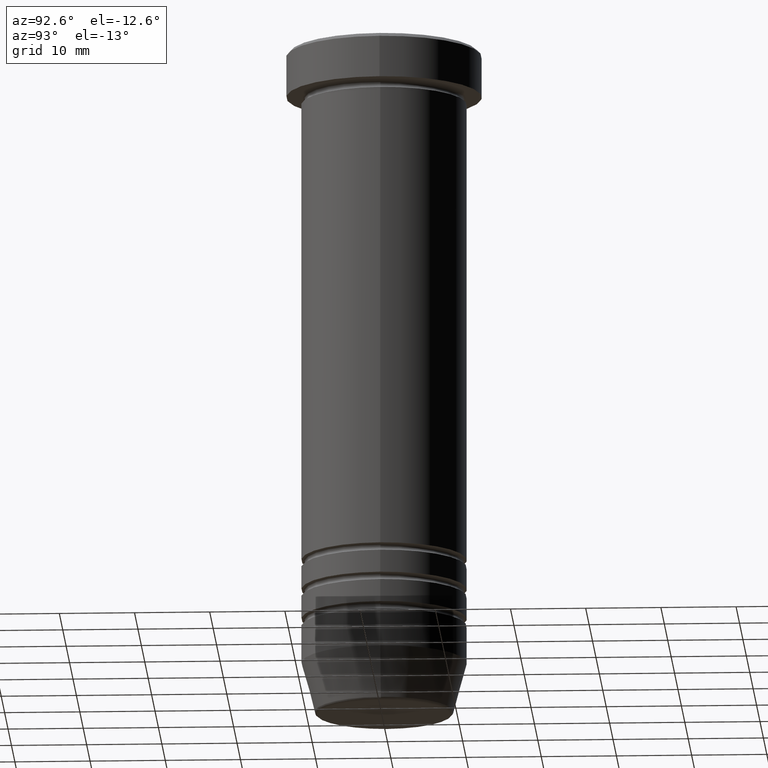
[diagram: clean part render]
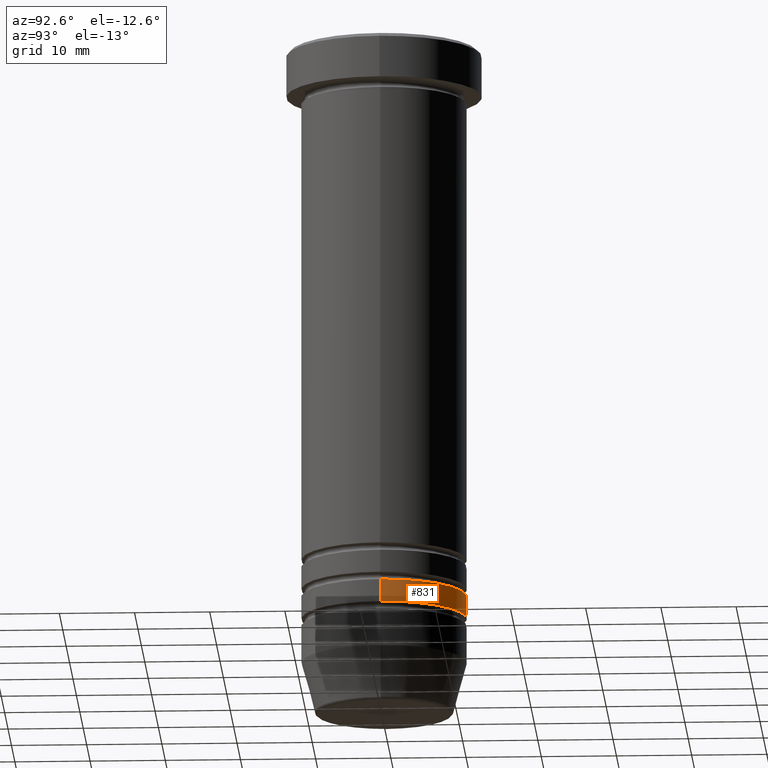
[diagram: same view with one face highlighted and labeled with its STEP entity id]
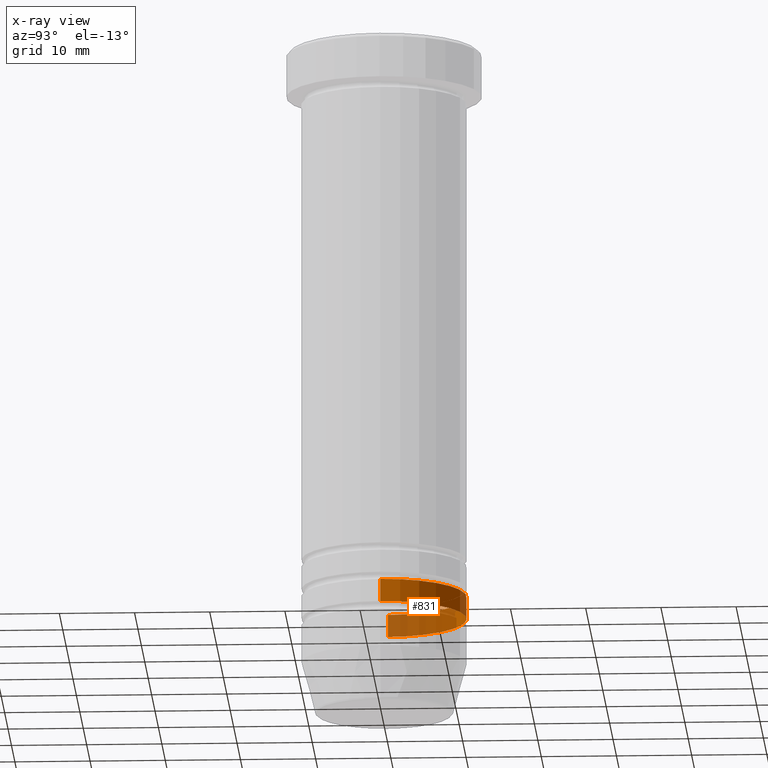
[diagram: x-ray of the same camera — body ghosted, the highlighted face saturated]
A machine part, auxiliary view. The second image highlights one B-rep face of the part: STEP entity #831.
The next image is the same camera in x-ray: the body ghosted, the highlighted face saturated — about 42% of this face is hidden behind the body in this view.
In plain terms, the highlighted cylindrical surface (partial cylindrical patch) has radius 11 mm, axis along (-0, -0, 1).
Its self-contained STEP definition (entity closure, byte-faithful):
#43 = CARTESIAN_POINT ( 'NONE',  ( 10.99999999999999645, 0.000000000000000000, 0.000000000000000000 ) ) ;
#45 = CARTESIAN_POINT ( 'NONE',  ( 0.000000000000000000, 0.000000000000000000, -76.99999999999998579 ) ) ;
#141 = EDGE_CURVE ( 'NONE', #911, #784, #813, .T. ) ;
#182 = CARTESIAN_POINT ( 'NONE',  ( 0.000000000000000000, 0.000000000000000000, -73.99999999999998579 ) ) ;
#192 = DIRECTION ( 'NONE',  ( -0.000000000000000000, -0.000000000000000000, 1.000000000000000000 ) ) ;
#219 = AXIS2_PLACEMENT_3D ( 'NONE', #45, #962, #631 ) ;
#271 = CARTESIAN_POINT ( 'NONE',  ( 0.000000000000000000, 0.000000000000000000, 0.000000000000000000 ) ) ;
#284 = VERTEX_POINT ( 'NONE', #992 ) ;
#338 = EDGE_LOOP ( 'NONE', ( #421, #351, #725, #643 ) ) ;
#351 = ORIENTED_EDGE ( 'NONE', *, *, #746, .T. ) ;
#421 = ORIENTED_EDGE ( 'NONE', *, *, #529, .T. ) ;
#439 = CARTESIAN_POINT ( 'NONE',  ( 10.99999999999999289, 0.000000000000000000, -76.99999999999998579 ) ) ;
#449 = FACE_OUTER_BOUND ( 'NONE', #338, .T. ) ;
#472 = CIRCLE ( 'NONE', #589, 11.00000000000000000 ) ;
#494 = DIRECTION ( 'NONE',  ( -0.000000000000000000, -0.000000000000000000, 1.000000000000000000 ) ) ;
#529 = EDGE_CURVE ( 'NONE', #911, #748, #688, .T. ) ;
#589 = AXIS2_PLACEMENT_3D ( 'NONE', #182, #192, #928 ) ;
#595 = DIRECTION ( 'NONE',  ( -0.000000000000000000, -0.000000000000000000, 1.000000000000000000 ) ) ;
#631 = DIRECTION ( 'NONE',  ( 1.000000000000000000, 0.000000000000000000, 0.000000000000000000 ) ) ;
#643 = ORIENTED_EDGE ( 'NONE', *, *, #141, .F. ) ;
#656 = LINE ( 'NONE', #987, #983 ) ;
#661 = CARTESIAN_POINT ( 'NONE',  ( -10.99999999999999289, 1.347111479062087813E-15, -76.99999999999998579 ) ) ;
#667 = AXIS2_PLACEMENT_3D ( 'NONE', #271, #595, #696 ) ;
#688 = CIRCLE ( 'NONE', #219, 10.99999999999999289 ) ;
#696 = DIRECTION ( 'NONE',  ( 1.000000000000000000, 0.000000000000000000, 0.000000000000000000 ) ) ;
#725 = ORIENTED_EDGE ( 'NONE', *, *, #874, .F. ) ;
#746 = EDGE_CURVE ( 'NONE', #748, #284, #656, .T. ) ;
#748 = VERTEX_POINT ( 'NONE', #661 ) ;
#784 = VERTEX_POINT ( 'NONE', #821 ) ;
#813 = LINE ( 'NONE', #43, #970 ) ;
#821 = CARTESIAN_POINT ( 'NONE',  ( 11.00000000000000000, 0.000000000000000000, -73.99999999999998579 ) ) ;
#831 = ADVANCED_FACE ( 'NONE', ( #449 ), #1011, .T. ) ;
#874 = EDGE_CURVE ( 'NONE', #784, #284, #472, .T. ) ;
#911 = VERTEX_POINT ( 'NONE', #439 ) ;
#928 = DIRECTION ( 'NONE',  ( 1.000000000000000000, 0.000000000000000000, 0.000000000000000000 ) ) ;
#962 = DIRECTION ( 'NONE',  ( -0.000000000000000000, -0.000000000000000000, 1.000000000000000000 ) ) ;
#968 = DIRECTION ( 'NONE',  ( -0.000000000000000000, -0.000000000000000000, 1.000000000000000000 ) ) ;
#970 = VECTOR ( 'NONE', #968, 1000.000000000000000 ) ;
#983 = VECTOR ( 'NONE', #494, 1000.000000000000000 ) ;
#987 = CARTESIAN_POINT ( 'NONE',  ( -10.99999999999999645, 1.347111479062088010E-15, 0.000000000000000000 ) ) ;
#992 = CARTESIAN_POINT ( 'NONE',  ( -10.99999999999999822, 1.347111479062088405E-15, -73.99999999999998579 ) ) ;
#1011 = CYLINDRICAL_SURFACE ( 'NONE', #667, 10.99999999999999645 ) ;